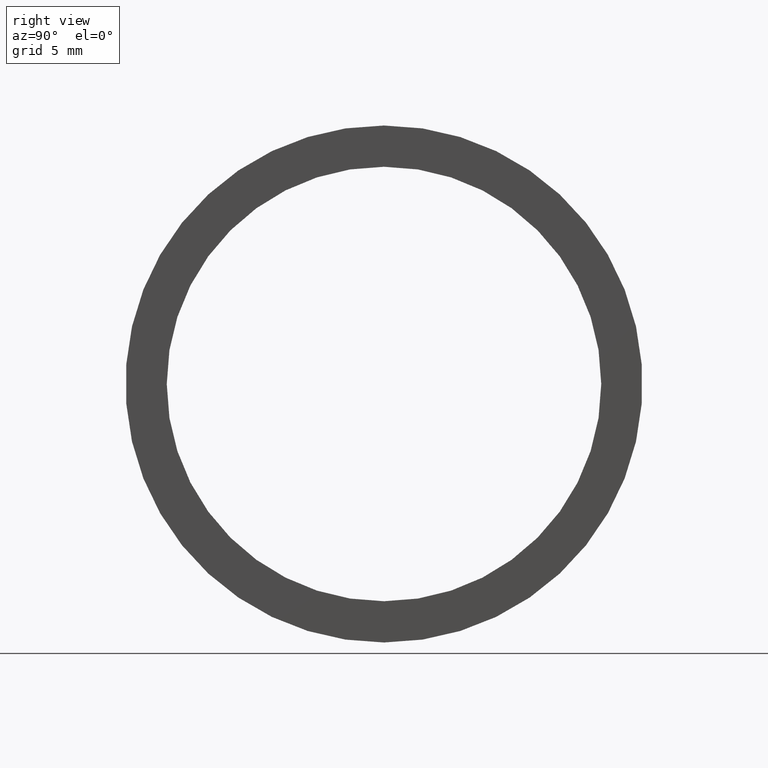
[diagram: clean part render]
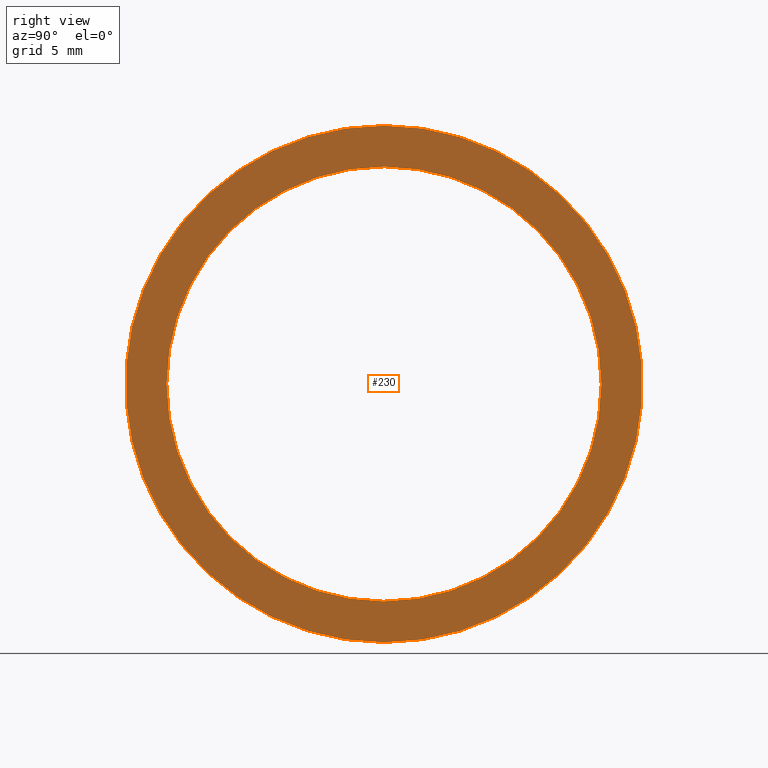
[diagram: same view with one face highlighted and labeled with its STEP entity id]
A machine part, right view. The second image highlights one B-rep face of the part: STEP entity #230.
In plain terms, the highlighted planar face has unit normal (1, 0, 0).
Its self-contained STEP definition (entity closure, byte-faithful):
#2 = EDGE_CURVE ( 'NONE', #3, #11, #25, .T. ) ;
#3 = VERTEX_POINT ( 'NONE', #20 ) ;
#11 = VERTEX_POINT ( 'NONE', #63 ) ;
#20 = CARTESIAN_POINT ( 'NONE',  ( 0.07999999999999996000, 0.0000000000000000000, 0.4699999999999999700 ) ) ;
#21 = DIRECTION ( 'NONE',  ( 0.0000000000000000000, 0.0000000000000000000, 1.000000000000000000 ) ) ;
#22 = DIRECTION ( 'NONE',  ( -1.000000000000000000, 0.0000000000000000000, 0.0000000000000000000 ) ) ;
#23 = CARTESIAN_POINT ( 'NONE',  ( 0.07999999999999996000, 0.0000000000000000000, 0.0000000000000000000 ) ) ;
#24 = AXIS2_PLACEMENT_3D ( 'NONE', #23, #22, #21 ) ;
#25 = CIRCLE ( 'NONE', #24, 0.4699999999999999700 ) ;
#29 = EDGE_CURVE ( 'NONE', #11, #3, #76, .T. ) ;
#32 = EDGE_CURVE ( 'NONE', #44, #252, #77, .T. ) ;
#33 = ORIENTED_EDGE ( 'NONE', *, *, #251, .T. ) ;
#34 = EDGE_LOOP ( 'NONE', ( #35, #36 ) ) ;
#35 = ORIENTED_EDGE ( 'NONE', *, *, #2, .F. ) ;
#36 = ORIENTED_EDGE ( 'NONE', *, *, #29, .F. ) ;
#44 = VERTEX_POINT ( 'NONE', #101 ) ;
#63 = CARTESIAN_POINT ( 'NONE',  ( 0.07999999999999996000, 5.755839955992559700E-017, -0.4699999999999999700 ) ) ;
#73 = DIRECTION ( 'NONE',  ( 0.0000000000000000000, 0.0000000000000000000, 1.000000000000000000 ) ) ;
#74 = DIRECTION ( 'NONE',  ( -1.000000000000000000, 0.0000000000000000000, 0.0000000000000000000 ) ) ;
#75 = AXIS2_PLACEMENT_3D ( 'NONE', #92, #74, #73 ) ;
#76 = CIRCLE ( 'NONE', #75, 0.4699999999999999700 ) ;
#77 = CIRCLE ( 'NONE', #87, 0.3950000000000000200 ) ;
#84 = DIRECTION ( 'NONE',  ( 0.0000000000000000000, 0.0000000000000000000, 1.000000000000000000 ) ) ;
#85 = DIRECTION ( 'NONE',  ( -1.000000000000000000, 0.0000000000000000000, 0.0000000000000000000 ) ) ;
#86 = CARTESIAN_POINT ( 'NONE',  ( 0.07999999999999996000, 0.0000000000000000000, 0.0000000000000000000 ) ) ;
#87 = AXIS2_PLACEMENT_3D ( 'NONE', #86, #85, #84 ) ;
#92 = CARTESIAN_POINT ( 'NONE',  ( 0.07999999999999996000, 0.0000000000000000000, 0.0000000000000000000 ) ) ;
#98 = FACE_OUTER_BOUND ( 'NONE', #34, .T. ) ;
#99 = CARTESIAN_POINT ( 'NONE',  ( 0.08000000000000001600, -0.3950000000000000200, 0.0000000000000000000 ) ) ;
#100 = FACE_BOUND ( 'NONE', #231, .T. ) ;
#101 = CARTESIAN_POINT ( 'NONE',  ( 0.07999999999999996000, 0.0000000000000000000, 0.3950000000000000200 ) ) ;
#103 = PLANE ( 'NONE',  #108 ) ;
#108 = AXIS2_PLACEMENT_3D ( 'NONE', #99, #110, #109 ) ;
#109 = DIRECTION ( 'NONE',  ( 0.0000000000000000000, 0.0000000000000000000, -1.000000000000000000 ) ) ;
#110 = DIRECTION ( 'NONE',  ( 1.000000000000000000, 0.0000000000000000000, 0.0000000000000000000 ) ) ;
#134 = CARTESIAN_POINT ( 'NONE',  ( 0.07999999999999996000, 4.837354856632045600E-017, -0.3950000000000000200 ) ) ;
#135 = DIRECTION ( 'NONE',  ( 0.0000000000000000000, 0.0000000000000000000, 1.000000000000000000 ) ) ;
#136 = DIRECTION ( 'NONE',  ( -1.000000000000000000, 0.0000000000000000000, 0.0000000000000000000 ) ) ;
#137 = CARTESIAN_POINT ( 'NONE',  ( 0.07999999999999996000, 0.0000000000000000000, 0.0000000000000000000 ) ) ;
#138 = AXIS2_PLACEMENT_3D ( 'NONE', #137, #136, #135 ) ;
#145 = CIRCLE ( 'NONE', #138, 0.3950000000000000200 ) ;
#230 = ADVANCED_FACE ( 'NONE', ( #100, #98 ), #103, .T. ) ;
#231 = EDGE_LOOP ( 'NONE', ( #232, #33 ) ) ;
#232 = ORIENTED_EDGE ( 'NONE', *, *, #32, .T. ) ;
#251 = EDGE_CURVE ( 'NONE', #252, #44, #145, .T. ) ;
#252 = VERTEX_POINT ( 'NONE', #134 ) ;